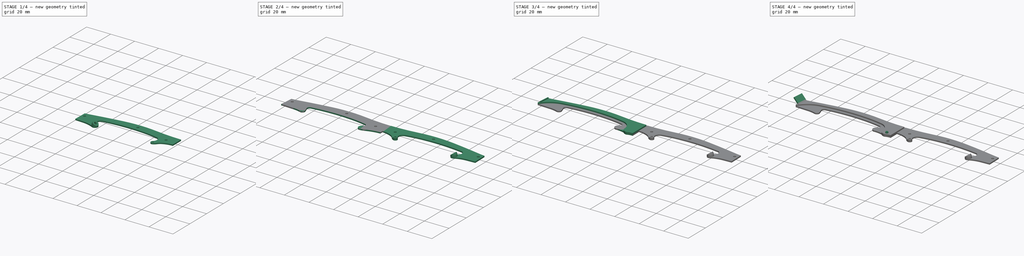
[diagram: build sequence overview — one tinted view per stage of 4, left to right]
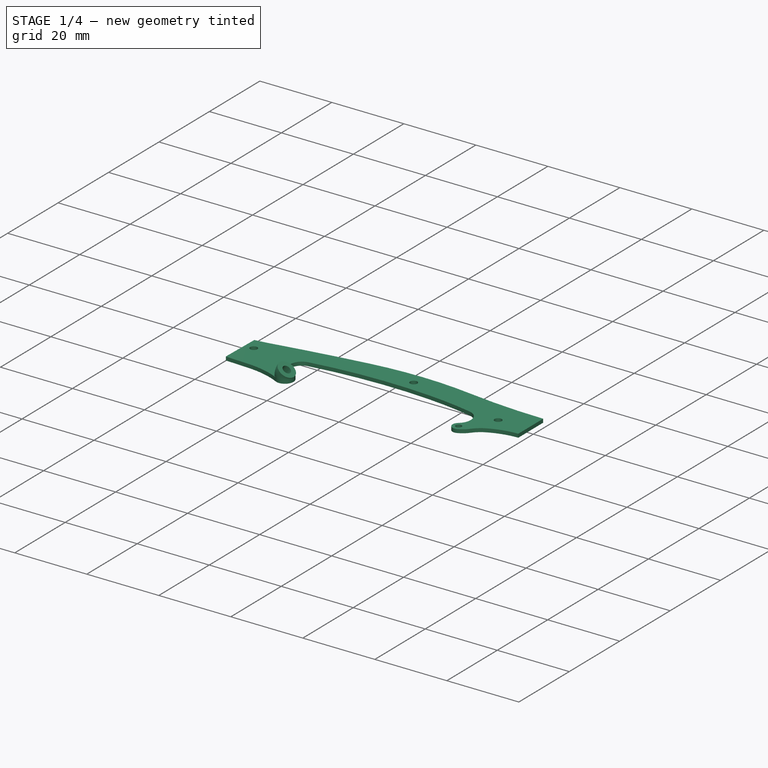
[diagram: stage 1 of 4 — iso view after this stage's code; geometry added in this stage tinted green]
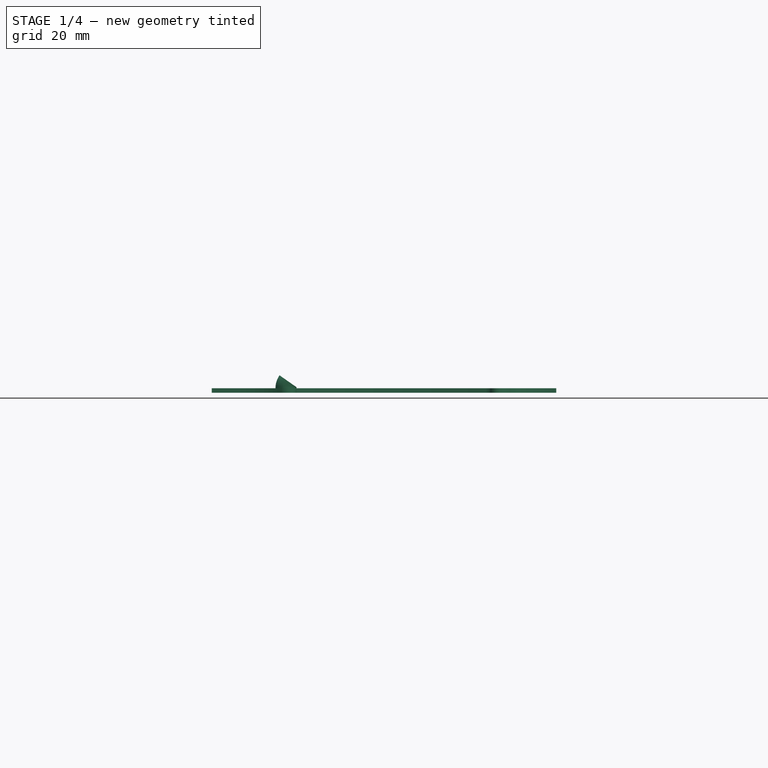
[diagram: stage 1 of 4 — front view after this stage's code; geometry added in this stage tinted green]
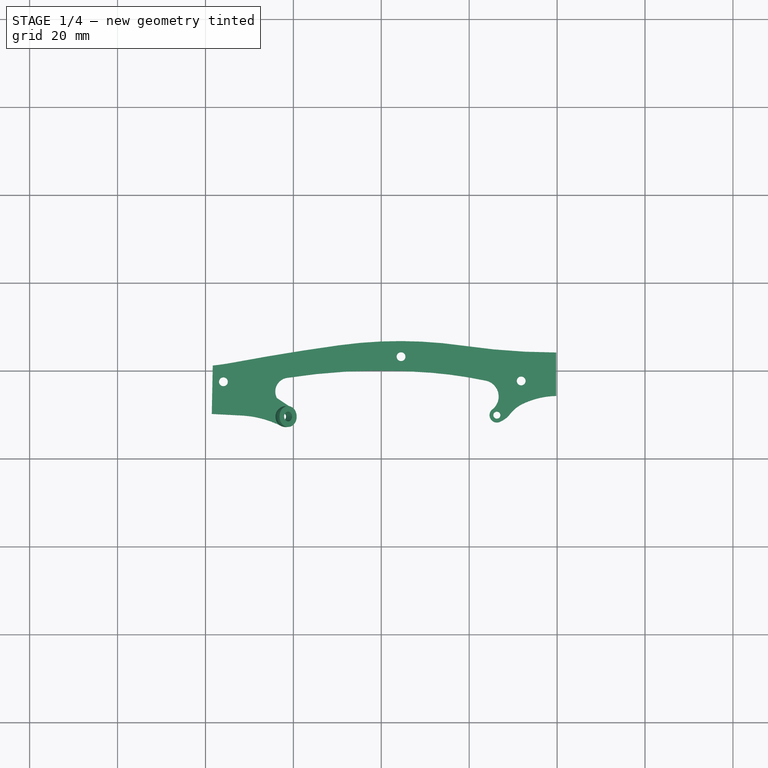
[diagram: stage 1 of 4 — top view after this stage's code; geometry added in this stage tinted green]
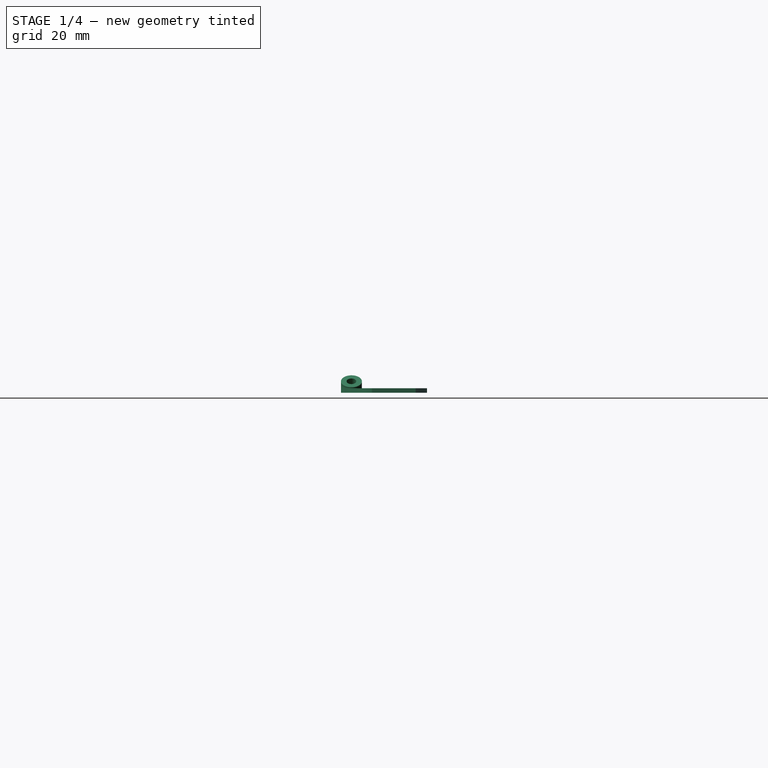
[diagram: stage 1 of 4 — right view after this stage's code; geometry added in this stage tinted green]
FCSTD DOCUMENT  (FreeCAD 0.14R3683 (Git))
Label: frame-attach
License: CC-BY 3.0
LicenseURL: http://creativecommons.org/licenses/by/3.0/
objects: Sketcher::SketchObject×12, PartDesign::Pad×8, PartDesign::Pocket×3, Image::ImagePlane×1, PartDesign::Revolution×1, Part::Mirroring×1
note: 37 computed .brp shape members not serialized (recipe doc carries the construction recipe); baked Part::Feature solids carry a one-line shape summary decoded from their .brp

FEATURE [Sketcher::SketchObject] Sketch010  label="top cover004"
  sketch-geometry (25):
    g0: GeomPoint [constr] X=-78.3435 Y=1.23505 Z=0
    g1: ArcOfCircle CenterX=-35.8152 CenterY=-93.0325 CenterZ=0 NormalX=0 NormalY=0 NormalZ=1 Radius=99.8313 StartAngle=1.42625 EndAngle=1.70819
    g2: ArcOfCircle CenterX=0.0743623 CenterY=153.533 CenterZ=0 NormalX=0 NormalY=0 NormalZ=1 Radius=149.333 StartAngle=4.56785 EndAngle=4.71055
    g3: LineSegment [constr] StartX=-0.2 StartY=12.6157 StartZ=0 EndX=-0.2 EndY=4.20069 EndZ=0
    g4: ArcOfCircle CenterX=-83.6805 CenterY=53.8748 CenterZ=0 NormalX=0 NormalY=0 NormalZ=1 Radius=52.9096 StartAngle=4.81343 EndAngle=4.8983
    g5: ArcOfCircle CenterX=20.3393 CenterY=-499.172 CenterZ=0 NormalX=0 NormalY=0 NormalZ=1 Radius=509.835 StartAngle=1.70819 EndAngle=1.75671
    g6: LineSegment StartX=-78.3435 StartY=1.23505 StartZ=0 EndX=-78.5637 EndY=-9.77156 EndZ=0
    g7: ArcOfCircle CenterX=-40.0846 CenterY=-138.659 CenterZ=0 NormalX=0 NormalY=0 NormalZ=1 Radius=138.746 StartAngle=1.48737 EndAngle=1.72534
    g8: ArcOfCircle CenterX=-36.8483 CenterY=-99.958 CenterZ=0 NormalX=0 NormalY=0 NormalZ=1 Radius=99.9108 StartAngle=1.36287 EndAngle=1.48737
    g9: GeomPoint [constr] X=4.23561 Y=-13.8169 Z=0
    g10: LineSegment StartX=-0.2 StartY=-5.67807 StartZ=0 EndX=-0.2 EndY=4.20069 EndZ=0
    g11: ArcOfCircle CenterX=-60.9564 CenterY=-4.68362 CenterZ=0 NormalX=0 NormalY=0 NormalZ=1 Radius=3.15536 StartAngle=1.72534 EndAngle=3.635
    g12: ArcOfCircle CenterX=-61.6988 CenterY=-10.3877 CenterZ=0 NormalX=0 NormalY=0 NormalZ=1 Radius=2.37961 StartAngle=4.2469 EndAngle=7.26764
    g13: LineSegment StartX=-63.7354 StartY=-6.17811 StartZ=0 EndX=-60.3822 EndY=-8.40554 EndZ=0
    g14: ArcOfCircle CenterX=-72.9831 CenterY=-32.8525 CenterZ=0 NormalX=0 NormalY=0 NormalZ=1 Radius=22.7601 StartAngle=1.10531 EndAngle=1.51885
    g15: ArcOfCircle CenterX=-16.9856 CenterY=-5.81297 CenterZ=0 NormalX=0 NormalY=0 NormalZ=1 Radius=3.69318 StartAngle=5.3714 EndAngle=7.64605
    g16: ArcOfCircle CenterX=-13.7 CenterY=-10.055 CenterZ=0 NormalX=0 NormalY=0 NormalZ=1 Radius=1.67246 StartAngle=2.22981 EndAngle=5.11136
    g17: Circle CenterX=-8.1709 CenterY=-2.26972 CenterZ=0 NormalX=0 NormalY=0 NormalZ=1 Radius=1
    g18: Circle CenterX=-75.9168 CenterY=-2.45381 CenterZ=0 NormalX=0 NormalY=0 NormalZ=1 Radius=1
    g19: Circle CenterX=-35.5086 CenterY=3.25304 CenterZ=0 NormalX=0 NormalY=0 NormalZ=1 Radius=1
    g20: ArcOfCircle CenterX=-15.3616 CenterY=-6.11368 CenterZ=0 NormalX=0 NormalY=0 NormalZ=1 Radius=5.94973 StartAngle=5.11136 EndAngle=5.62317
    g21: ArcOfCircle CenterX=-4.42447 CenterY=-14.6023 CenterZ=0 NormalX=0 NormalY=0 NormalZ=1 Radius=7.89504 StartAngle=2.01395 EndAngle=2.48158
    g22: ArcOfCircle CenterX=0.159561 CenterY=-24.2601 CenterZ=0 NormalX=0 NormalY=0 NormalZ=1 Radius=18.5855 StartAngle=1.59014 EndAngle=2.01395
    g23: Circle CenterX=-13.7 CenterY=-10.055 CenterZ=0 NormalX=0 NormalY=0 NormalZ=1 Radius=0.8
    g24: LineSegment StartX=-78.5637 StartY=-9.77156 StartZ=0 EndX=-71.8012 EndY=-10.1232 EndZ=0
  constraints (54):
    c: Coincident(g2,g1)
    c: Tangent(g2,g1)
    c: Vertical(g3)
    c: Coincident(g4,g0)
    c: Coincident(g5,g4)
    c: Coincident(g5,g1)
    c: Tangent(g4,g5)
    c: Tangent(g5,g1)
    c: Coincident(g6,g0)
    c: Coincident(g8,g7)
    c: Tangent(g8,g7)
    c: DistanceX(g7) = -28.5225
    c: Coincident(g3,g2)
    c: Coincident(g10,g2)
    c: Coincident(g11,g7)
    c: Tangent(g11,g7)
    c: Coincident(g13,g11)
    c: Coincident(g13,g12)
    c: Coincident(g14,g12)
    c: Coincident(g15,g8)
    c: Coincident(g16,g15)
    c: DistanceX(g3) = -0.2
    c: DistanceY(g3) = 12.6157
    c: Parallel(g10,g-2)
    c: Radius(g18) = 1
    c: Equal(g18,g19)
    c: Equal(g19,g17)
    c: Tangent(g13,g12)
    c: Tangent(g14,g12)
    c: Coincident(g20,g16)
    c: Tangent(g20,g16)
    c: Tangent(g15,g8)
    c: Coincident(g21,g20)
    c: Tangent(g21,g20)
    c: Coincident(g22,g21)
    c: Tangent(g22,g21)
    c: Tangent(g15,g16)
    c: Coincident(g22,g10)
    c: Distance(g12,g16) = 48
    c: Coincident(g23,g16)
    c: Radius(g23) = 0.8
    c: DistanceX(g19) = -35.5086
    c: DistanceY(g19) = 3.25304
    c: DistanceX(g18) = -75.9168
    c: DistanceY(g18) = -2.45381
    c: DistanceX(g17) = -8.1709
    c: DistanceY(g17) = -2.26972
    c: DistanceY(g16) = -10.055
    c: Distance(g18,g6) = 2.5
    c: Distance(g16,g10) = 13.5
    c: Coincident(g24,g6)
    c: Coincident(g24,g14)
    c: Tangent(g24,g14)
    c: Distance(g6) = 11.0088
FEATURE [PartDesign::Pad] Pad006
  Length = 1
  Length2 = 100
  Sketch = -> Sketch010
  Type = 0
FEATURE [Sketcher::SketchObject] Sketch011
  ExternalGeometry = -> [Pad006]
  Placement = pos=(0,0,1) rot=(0,0,1;0rad)
  Support = -> Pad006 [Face24]
  sketch-geometry (2):
    g0: Circle CenterX=-61.6988 CenterY=-10.3877 CenterZ=0 NormalX=0 NormalY=0 NormalZ=1 Radius=2.37961
    g1: LineSegment [constr] StartX=-58.924 StartY=-5.54495 StartZ=0 EndX=-58.924 EndY=-15.386 EndZ=0
  constraints (3):
    c: Coincident(g0,g-3)
    c: Equal(g0,g-3)
    c: Vertical(g1)
FEATURE [PartDesign::Revolution] Revolution
  Angle = 35
  Axis = (0,-9.84103,0)
  Base = (-58.924,-5.54495,1)
  ReferenceAxis = -> Sketch011 [Axis0]
  Reversed = true
  Sketch = -> Sketch011
FEATURE [Sketcher::SketchObject] Sketch012
  ExternalGeometry = -> [Revolution]
  Placement = pos=(-18.9156,0,-27.0142) rot=(0,1,0;0.610865rad)
  Support = -> Revolution [Face26]
  sketch-geometry (1):
    g0: Circle CenterX=-51.6161 CenterY=-10.3877 CenterZ=0 NormalX=0 NormalY=0 NormalZ=1 Radius=1.10274
  constraints (1):
    c: Coincident(g0,g-3)
FEATURE [PartDesign::Pocket] Pocket002
  Length = 5
  Sketch = -> Sketch012
  Type = 1
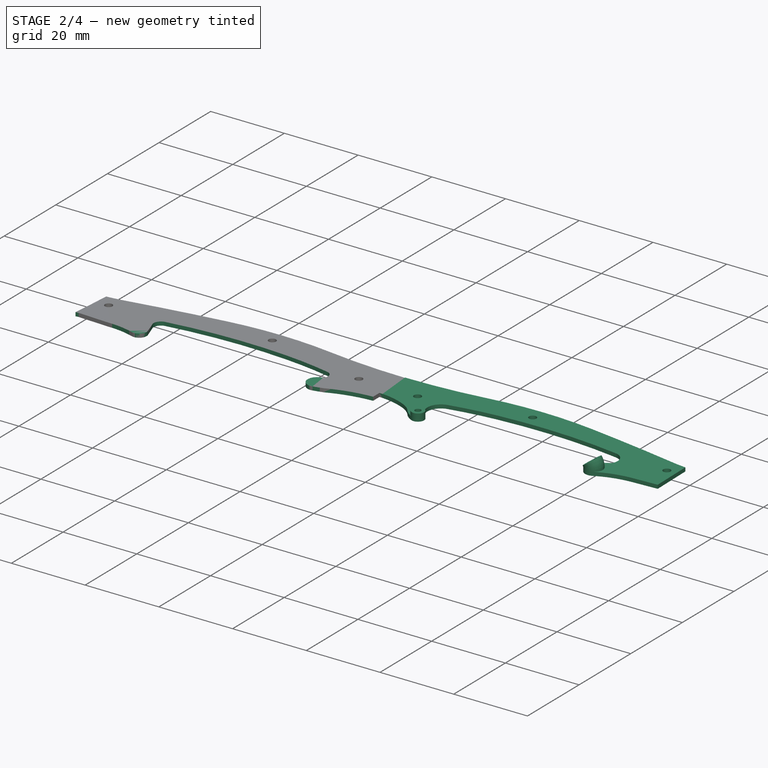
[diagram: stage 2 of 4 — iso view after this stage's code; geometry added in this stage tinted green]
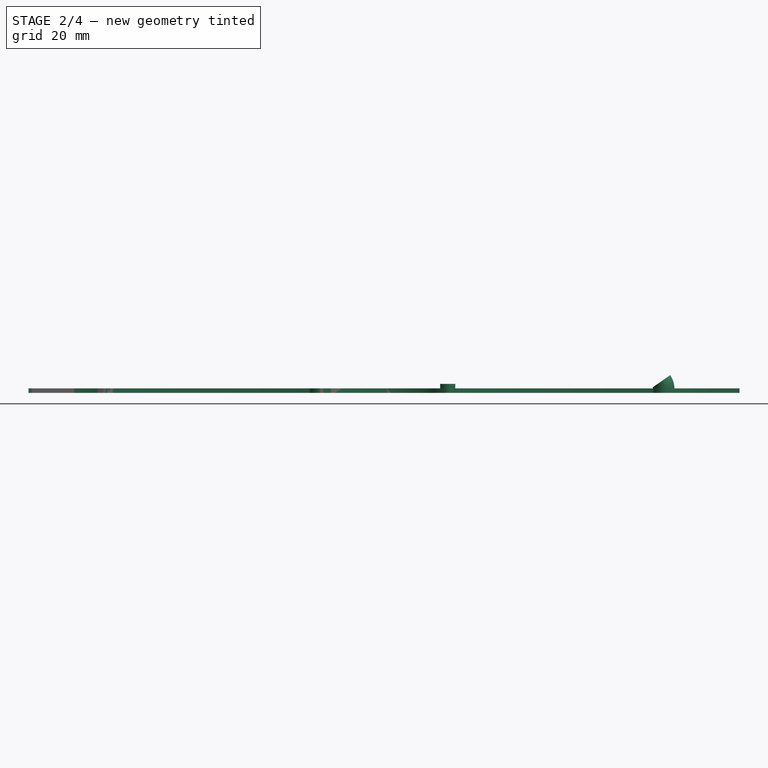
[diagram: stage 2 of 4 — front view after this stage's code; geometry added in this stage tinted green]
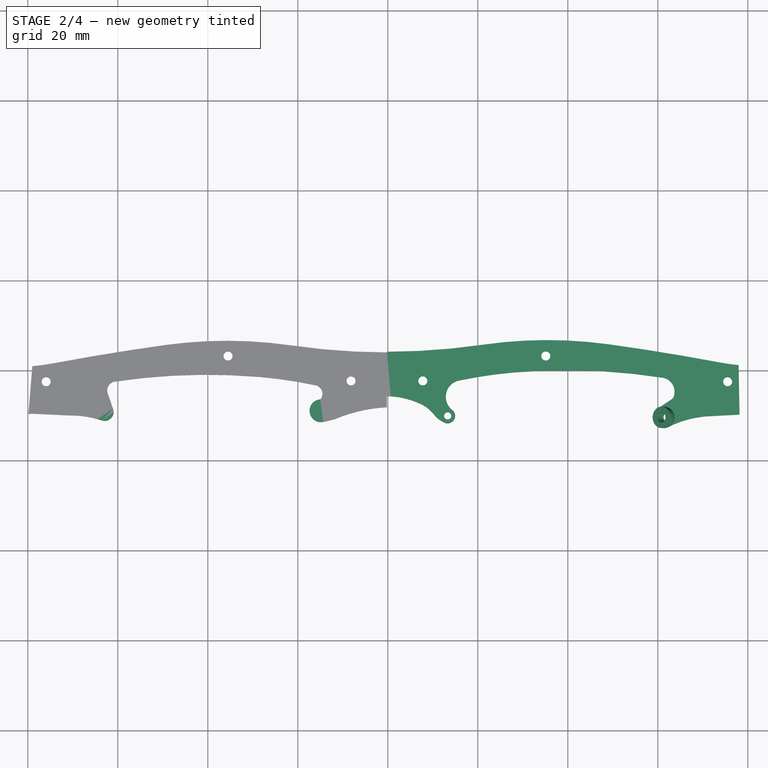
[diagram: stage 2 of 4 — top view after this stage's code; geometry added in this stage tinted green]
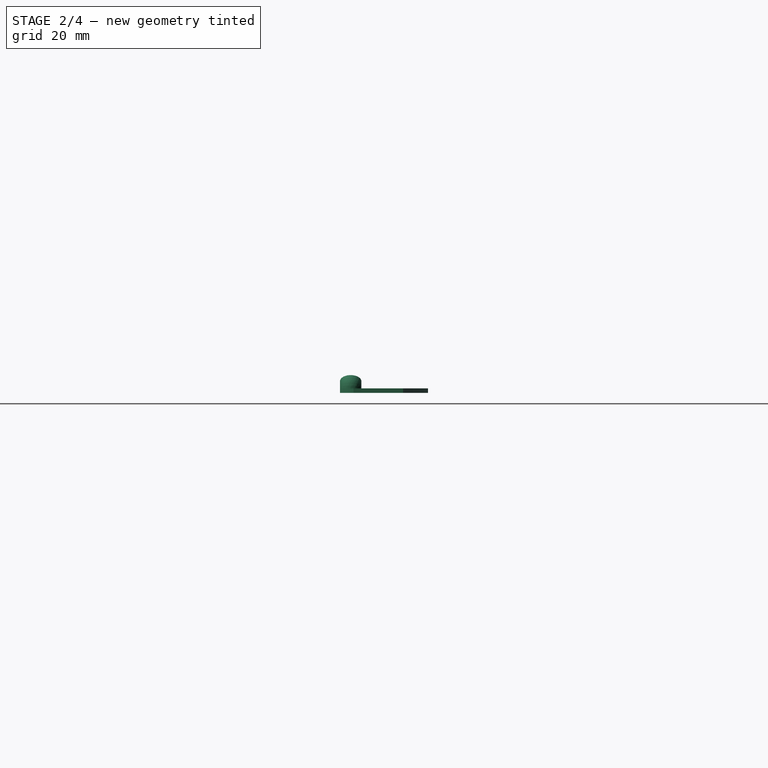
[diagram: stage 2 of 4 — right view after this stage's code; geometry added in this stage tinted green]
FEATURE [Sketcher::SketchObject] Sketch009  label="top cover003"
  sketch-geometry (24):
    g0: GeomPoint [constr] X=-79 Y=1.00507 Z=0
    g1: ArcOfCircle CenterX=-35.7626 CenterY=-93.1111 CenterZ=0 NormalX=0 NormalY=0 NormalZ=1 Radius=99.7546 StartAngle=1.42663 EndAngle=1.70818
    g2: ArcOfCircle CenterX=0.0337208 CenterY=153.464 CenterZ=0 NormalX=0 NormalY=0 NormalZ=1 Radius=149.406 StartAngle=4.56822 EndAngle=4.71082
    g3: LineSegment [constr] StartX=-0.2 StartY=12.6157 StartZ=0 EndX=-0.2 EndY=4.05894 EndZ=0
    g4: ArcOfCircle CenterX=-83.7041 CenterY=53.7846 CenterZ=0 NormalX=0 NormalY=0 NormalZ=1 Radius=52.9888 StartAngle=4.80128 EndAngle=4.89843
    g5: ArcOfCircle CenterX=20.3879 CenterY=-499.246 CenterZ=0 NormalX=0 NormalY=0 NormalZ=1 Radius=509.753 StartAngle=1.70818 EndAngle=1.75684
    g6: LineSegment StartX=-79 StartY=1.00507 StartZ=0 EndX=-79.863 EndY=-9.64545 EndZ=0
    g7: LineSegment StartX=-79.863 StartY=-9.64545 StartZ=0 EndX=-79.097 EndY=-9.55453 EndZ=0
    g8: ArcOfCircle CenterX=-40.1731 CenterY=-139.413 CenterZ=0 NormalX=0 NormalY=0 NormalZ=1 Radius=138.507 StartAngle=1.48658 EndAngle=1.71915
    g9: ArcOfCircle CenterX=-36.8805 CenterY=-100.408 CenterZ=0 NormalX=0 NormalY=0 NormalZ=1 Radius=99.3637 StartAngle=1.36038 EndAngle=1.48658
    g10: GeomPoint [constr] X=4.23561 Y=-13.8169 Z=0
    g11: LineSegment StartX=-0.2 StartY=-8.13554 StartZ=0 EndX=-0.2 EndY=4.05894 EndZ=0
    g12: ArcOfCircle CenterX=-60.3489 CenterY=-4.40997 CenterZ=0 NormalX=0 NormalY=0 NormalZ=1 Radius=2.00506 StartAngle=1.71915 EndAngle=3.61509
    g13: ArcOfCircle CenterX=-62.9316 CenterY=-9.17287 CenterZ=0 NormalX=0 NormalY=0 NormalZ=1 Radius=2.00011 StartAngle=4.42451 EndAngle=6.66404
    g14: LineSegment StartX=-62.1333 StartY=-5.32429 StartZ=0 EndX=-61.0748 EndY=-8.4294 EndZ=0
    g15: ArcOfCircle CenterX=-70.4865 CenterY=-31.9632 CenterZ=0 NormalX=0 NormalY=0 NormalZ=1 Radius=22.0109 StartAngle=1.24777 EndAngle=1.58372
    g16: LineSegment StartX=-79.097 StartY=-9.55453 StartZ=0 EndX=-70.7709 EndY=-9.9541 EndZ=0
    g17: ArcOfCircle CenterX=-16.448 CenterY=-5.11784 CenterZ=0 NormalX=0 NormalY=0 NormalZ=1 Radius=1.90917 StartAngle=5.56044 EndAngle=7.68511
    g18: ArcOfCircle CenterX=-14.8586 CenterY=-8.9173 CenterZ=0 NormalX=0 NormalY=0 NormalZ=1 Radius=2.54154 StartAngle=1.63279 EndAngle=4.91881
    g19: ArcOfCircle CenterX=-23.5927 CenterY=32.7918 CenterZ=0 NormalX=0 NormalY=0 NormalZ=1 Radius=45.1553 StartAngle=4.91881 EndAngle=4.97634
    g20: ArcOfCircle CenterX=1.54339 CenterY=-42.3727 CenterZ=0 NormalX=0 NormalY=0 NormalZ=1 Radius=34.2815 StartAngle=1.62167 EndAngle=1.97097
    g21: Circle CenterX=-8.1709 CenterY=-2.26972 CenterZ=0 NormalX=0 NormalY=0 NormalZ=1 Radius=1
    g22: Circle CenterX=-75.9168 CenterY=-2.45381 CenterZ=0 NormalX=0 NormalY=0 NormalZ=1 Radius=1
    g23: Circle CenterX=-35.5086 CenterY=3.25304 CenterZ=0 NormalX=0 NormalY=0 NormalZ=1 Radius=1
  constraints (40):
    c: DistanceX(g-2,g0) = -79
    c: Coincident(g2,g1)
    c: Tangent(g2,g1)
    c: Vertical(g3)
    c: Coincident(g4,g0)
    c: Coincident(g5,g4)
    c: Coincident(g5,g1)
    c: Tangent(g4,g5)
    c: Tangent(g5,g1)
    c: Coincident(g6,g0)
    c: Coincident(g7,g6)
    c: DistanceY(g7) = -9.55453
    c: Coincident(g9,g8)
    c: Tangent(g9,g8)
    c: DistanceX(g8) = -28.5225
    c: Coincident(g3,g2)
    c: Coincident(g11,g2)
    c: DistanceX(g7) = -79.097
    c: Coincident(g12,g8)
    c: Tangent(g12,g8)
    c: Coincident(g14,g12)
    c: Coincident(g14,g13)
    c: Coincident(g15,g13)
    c: Coincident(g16,g7)
    c: Coincident(g16,g15)
    c: Coincident(g17,g9)
    c: Coincident(g18,g17)
    c: DistanceX(g3) = -0.2
    c: DistanceY(g3) = 12.6157
    c: Parallel(g11,g-2)
    c: DistanceX(g18) = -14.3377
    c: Coincident(g19,g18)
    c: DistanceX(g18) = -14.8586
    c: DistanceY(g18) = -8.9173
    c: Tangent(g19,g18)
    c: Coincident(g20,g19)
    c: Coincident(g20,g11)
    c: Radius(g22) = 1
    c: Equal(g22,g23)
    c: Equal(g23,g21)
FEATURE [PartDesign::Pad] Pad005
  Length = 1
  Length2 = 100
  Sketch = -> Sketch009
  Type = 0
FEATURE [Sketcher::SketchObject] Sketch013
  Placement = pos=(0,0,1) rot=(0,0,1;0rad)
  Support = -> Pocket002 [Face5]
  sketch-geometry (2):
    g0: Circle CenterX=-13.7 CenterY=-10.055 CenterZ=0 NormalX=0 NormalY=0 NormalZ=1 Radius=1.67246
    g1: Circle CenterX=-13.7 CenterY=-10.055 CenterZ=0 NormalX=0 NormalY=0 NormalZ=1 Radius=0.8
  constraints (1):
    c: Coincident(g1,g0)
FEATURE [PartDesign::Pad] Pad007
  Length = 1
  Length2 = 100
  Sketch = -> Sketch013
  Type = 0
FEATURE [Part::Mirroring] Part__Mirroring  label="Pad007 (Mirror #1)"
  Base = (-0.2,0,0)
  Normal = (1,0,0)
  Source = -> Pad007
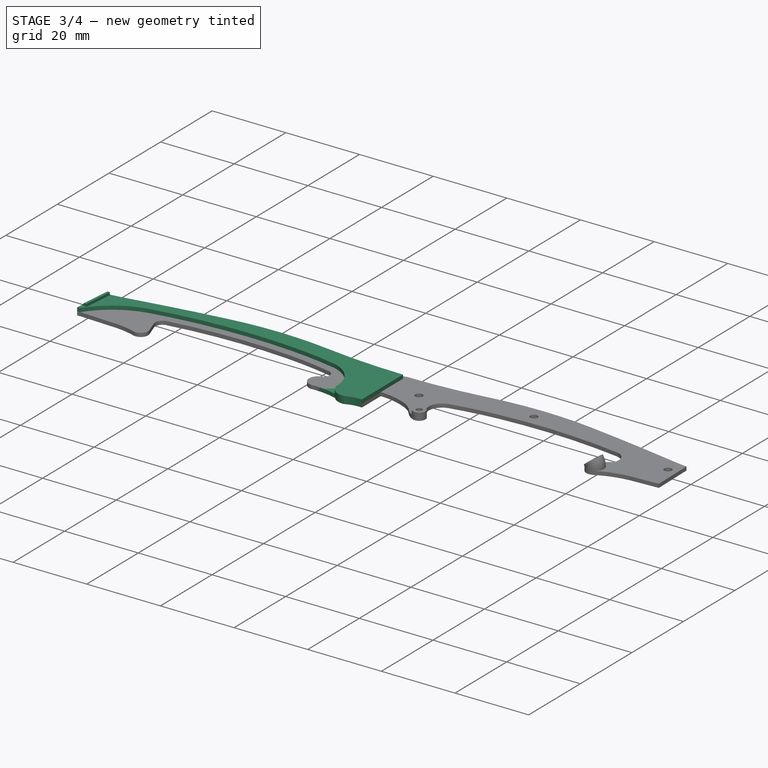
[diagram: stage 3 of 4 — iso view after this stage's code; geometry added in this stage tinted green]
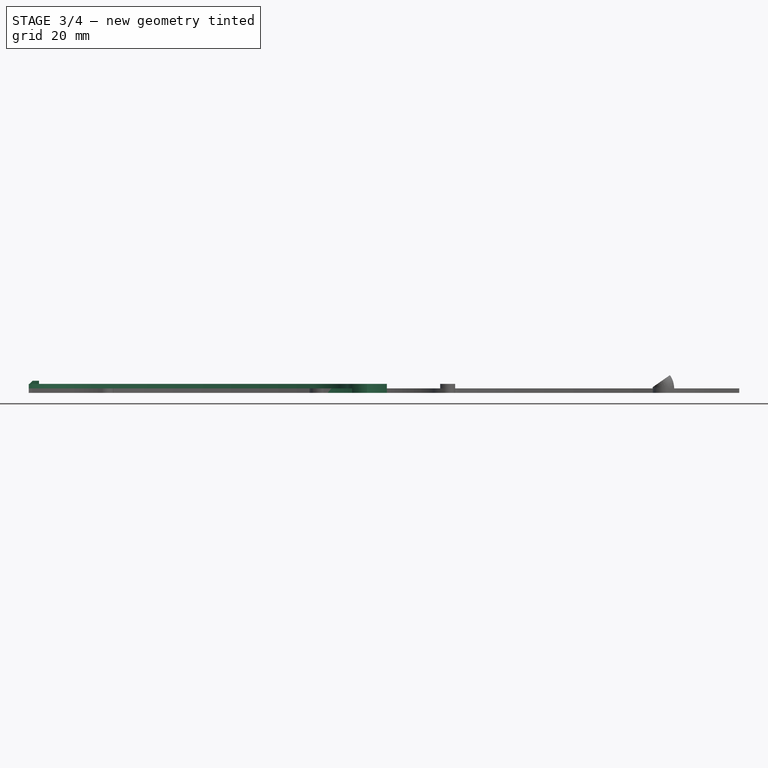
[diagram: stage 3 of 4 — front view after this stage's code; geometry added in this stage tinted green]
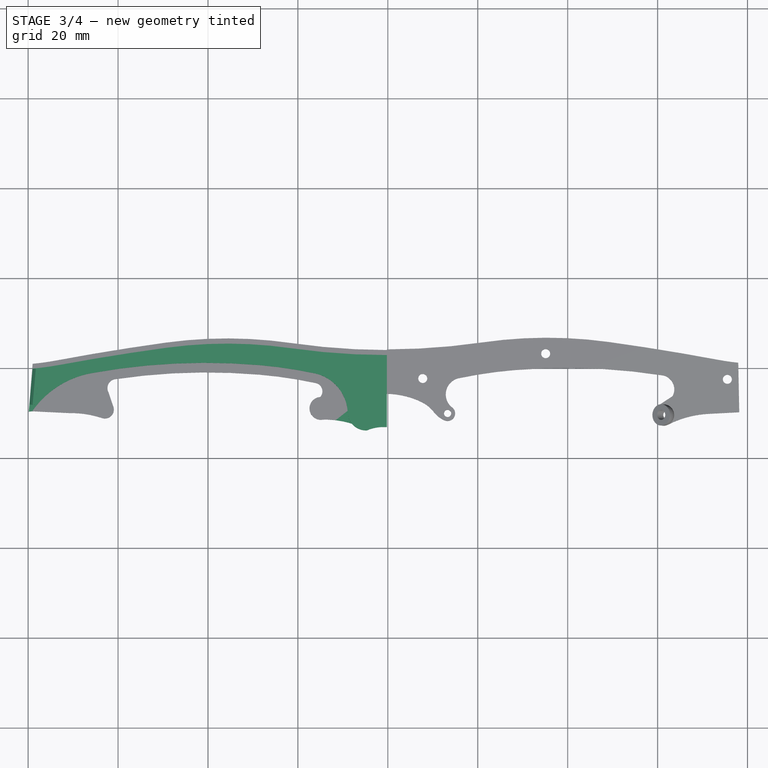
[diagram: stage 3 of 4 — top view after this stage's code; geometry added in this stage tinted green]
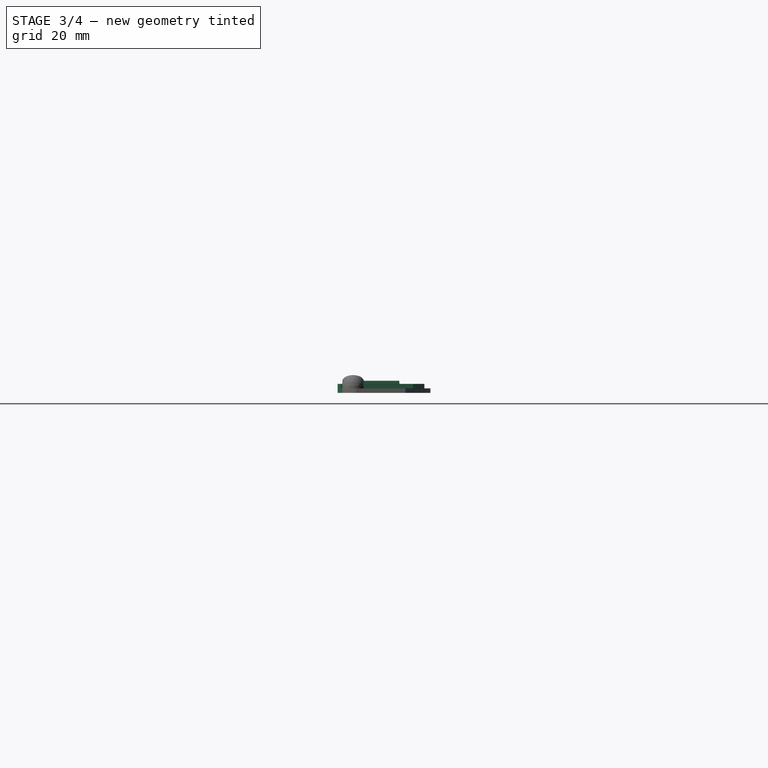
[diagram: stage 3 of 4 — right view after this stage's code; geometry added in this stage tinted green]
FEATURE [Image::ImagePlane] ImagePlane
  Placement = pos=(2.42941,4.33823,-10.029) rot=(-0.414463,0.885802,0.208749;0.103549rad)
  XSize = 191
  YSize = 143
FEATURE [Sketcher::SketchObject] Sketch002  label="top cover002"
  sketch-geometry (23):
    g0: GeomPoint [constr] X=-79 Y=0.55582 Z=0
    g1: ArcOfCircle CenterX=-35.7081 CenterY=-93.3995 CenterZ=0 NormalX=0 NormalY=0 NormalZ=1 Radius=99.4992 StartAngle=1.42732 EndAngle=1.70572
    g2: ArcOfCircle CenterX=-0.0800418 CenterY=153.211 CenterZ=0 NormalX=0 NormalY=0 NormalZ=1 Radius=149.672 StartAngle=4.56891 EndAngle=4.71159
    g3: LineSegment [constr] StartX=-0.2 StartY=12.6157 StartZ=0 EndX=-0.2 EndY=3.53938 EndZ=0
    g4: ArcOfCircle CenterX=-83.6183 CenterY=57.0912 CenterZ=0 NormalX=0 NormalY=0 NormalZ=1 Radius=56.7237 StartAngle=4.7939 EndAngle=4.89543
    g5: ArcOfCircle CenterX=19.4331 CenterY=-499.607 CenterZ=0 NormalX=0 NormalY=0 NormalZ=1 Radius=509.432 StartAngle=1.70572 EndAngle=1.75384
    g6: LineSegment StartX=-79 StartY=0.55582 StartZ=0 EndX=-79.863 EndY=-9.64545 EndZ=0
    g7: LineSegment StartX=-79.863 StartY=-9.64545 StartZ=0 EndX=-79.097 EndY=-9.55453 EndZ=0
    g8: ArcOfCircle CenterX=-40.292 CenterY=-139.607 CenterZ=0 NormalX=0 NormalY=0 NormalZ=1 Radius=138.694 StartAngle=1.48583 EndAngle=1.71808
    g9: ArcOfCircle CenterX=-36.9334 CenterY=-100.173 CenterZ=0 NormalX=0 NormalY=0 NormalZ=1 Radius=99.1162 StartAngle=1.35936 EndAngle=1.48583
    g10: ArcOfCircle CenterX=-4.80308 CenterY=-9.74415 CenterZ=0 NormalX=0 NormalY=0 NormalZ=1 Radius=4.07618 StartAngle=3.83045 EndAngle=4.75349
    g11: GeomPoint [constr] X=4.23561 Y=-13.8169 Z=0
    g12: ArcOfCircle CenterX=-0.69972 CenterY=-22.6893 CenterZ=0 NormalX=0 NormalY=0 NormalZ=1 Radius=9.70619 StartAngle=1.51929 EndAngle=1.98833
    g13: LineSegment [constr] StartX=-0.2 StartY=-12.9959 StartZ=0 EndX=-0.2 EndY=-14.9983 EndZ=0
    g14: LineSegment StartX=-0.2 StartY=-12.9959 StartZ=0 EndX=-0.2 EndY=3.53938 EndZ=0
    g15: ArcOfCircle CenterX=-60.3502 CenterY=-4.4023 CenterZ=0 NormalX=0 NormalY=0 NormalZ=1 Radius=2.00886 StartAngle=1.71808 EndAngle=3.61805
    g16: ArcOfCircle CenterX=-62.9316 CenterY=-9.17287 CenterZ=0 NormalX=0 NormalY=0 NormalZ=1 Radius=2.00011 StartAngle=4.42451 EndAngle=6.66404
    g17: LineSegment StartX=-62.1353 StartY=-5.32363 StartZ=0 EndX=-61.0748 EndY=-8.4294 EndZ=0
    g18: ArcOfCircle CenterX=-70.4865 CenterY=-31.9632 CenterZ=0 NormalX=0 NormalY=0 NormalZ=1 Radius=22.0109 StartAngle=1.24777 EndAngle=1.58372
    g19: LineSegment StartX=-79.097 StartY=-9.55453 StartZ=0 EndX=-70.7709 EndY=-9.9541 EndZ=0
    g20: ArcOfCircle CenterX=-16.4478 CenterY=-5.13353 CenterZ=0 NormalX=0 NormalY=0 NormalZ=1 Radius=1.89624 StartAngle=5.56498 EndAngle=7.68705
    g21: ArcOfCircle CenterX=-14.8775 CenterY=-8.92008 CenterZ=0 NormalX=0 NormalY=0 NormalZ=1 Radius=2.54275 StartAngle=1.62685 EndAngle=4.92629
    g22: ArcOfCircle CenterX=-14.0354 CenterY=-31.7251 CenterZ=0 NormalX=0 NormalY=0 NormalZ=1 Radius=20.3225 StartAngle=1.26668 EndAngle=1.58567
  constraints (38):
    c: DistanceX(g-2,g0) = -79
    c: Coincident(g2,g1)
    c: Tangent(g2,g1)
    c: Vertical(g3)
    c: Coincident(g4,g0)
    c: Coincident(g5,g4)
    c: Coincident(g5,g1)
    c: Tangent(g4,g5)
    c: Tangent(g5,g1)
    c: Coincident(g6,g0)
    c: Coincident(g7,g6)
    c: DistanceY(g7) = -9.55453
    c: Coincident(g9,g8)
    c: Tangent(g9,g8)
    c: DistanceX(g8) = -28.5225
    c: DistanceX(g10) = -4.63561
    c: DistanceY(g10) = -13.8169
    c: Symmetric(g10,g11,g3)
    c: Coincident(g12,g10)
    c: Coincident(g3,g2)
    c: Tangent(g3,g13)
    c: Coincident(g12,g13)
    c: Coincident(g14,g12)
    c: Coincident(g14,g2)
    c: DistanceX(g7) = -79.097
    c: Coincident(g15,g8)
    c: Tangent(g15,g8)
    c: Coincident(g17,g15)
    c: Coincident(g17,g16)
    c: Coincident(g18,g16)
    c: Coincident(g19,g7)
    c: Coincident(g19,g18)
    c: Coincident(g20,g9)
    c: Coincident(g21,g20)
    c: Coincident(g22,g21)
    c: Coincident(g22,g10)
    c: DistanceX(g3) = -0.2
    c: DistanceY(g3) = 12.6157
FEATURE [PartDesign::Pad] Pad001
  Length = 1
  Length2 = 100
  Sketch = -> Sketch002
  Type = 0
FEATURE [PartDesign::Pad] Pad002
  Length = 1
  Length2 = 100
  Sketch = -> Sketch001
  Type = 0
FEATURE [Sketcher::SketchObject] Sketch006
  Placement = pos=(0,0,2) rot=(0,0,1;0rad)
  Support = -> Pad002 [Face28]
  sketch-geometry (4):
    g0: LineSegment StartX=-79 StartY=-0.0750313 StartZ=0 EndX=-77.586 EndY=-0.202544 EndZ=0
    g1: LineSegment StartX=-77.586 StartY=-0.202544 StartZ=0 EndX=-78.3074 EndY=-8.20254 EndZ=0
    g2: LineSegment StartX=-78.3074 StartY=-8.20254 StartZ=0 EndX=-79.7214 EndY=-8.07503 EndZ=0
    g3: LineSegment StartX=-79.7214 StartY=-8.07503 StartZ=0 EndX=-79 EndY=-0.0750313 EndZ=0
FEATURE [PartDesign::Pad] Pad003
  Length = 0.707
  Length2 = 100
  Sketch = -> Sketch006
  Type = 0
FEATURE [Sketcher::SketchObject] Sketch
  ExternalGeometry = -> [Pad003]
  Placement = pos=(-1.3654,-15.1411,0) rot=(0.997981,-0.044907,-0.044907;1.57282rad)
  Support = -> Pad003 [Face41]
  sketch-geometry (4):
    g0: LineSegment StartX=-78.674 StartY=2 StartZ=0 EndX=-78.674 EndY=2.707 EndZ=0
    g1: LineSegment StartX=-78.674 StartY=2.707 StartZ=0 EndX=-77.9641 EndY=2.707 EndZ=0
    g2: LineSegment StartX=-77.9641 StartY=2.707 StartZ=0 EndX=-78.674 EndY=2 EndZ=0
    g3: LineSegment [constr] StartX=-77.9641 StartY=2.707 StartZ=0 EndX=-77.2542 EndY=2 EndZ=0
  constraints (9):
    c: Coincident(g-3,g0)
    c: Coincident(g0,g-4)
    c: Coincident(g0,g1)
    c: PointOnObject(g1,g-4)
    c: Coincident(g1,g2)
    c: Coincident(g2,g0)
    c: Coincident(g3,g1)
    c: Coincident(g3,g-5)
    c: Equal(g3,g2)
FEATURE [PartDesign::Pocket] Pocket
  Length = 5
  Sketch = -> Sketch
  Type = 1
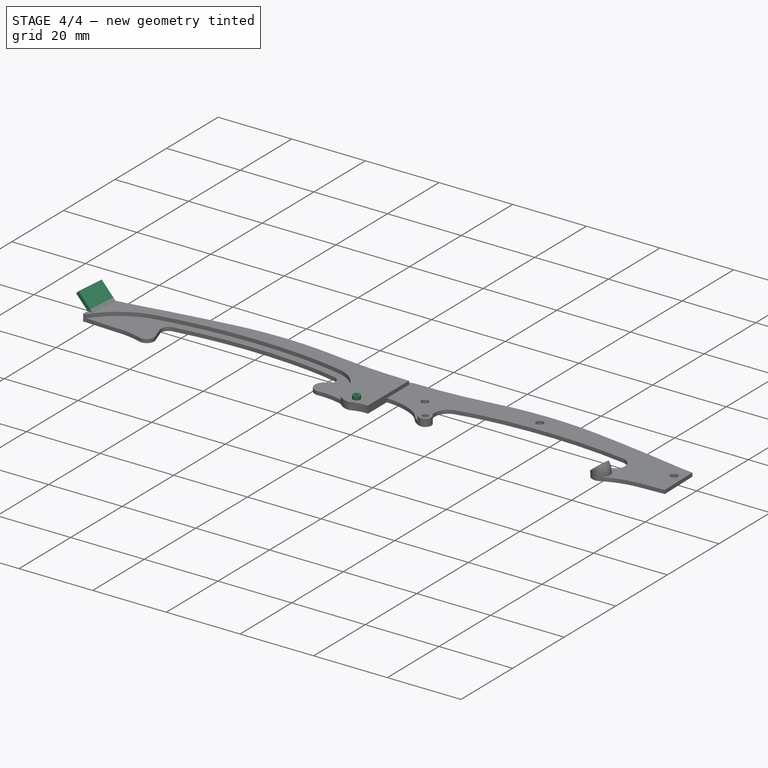
[diagram: stage 4 of 4 — iso view after this stage's code; geometry added in this stage tinted green]
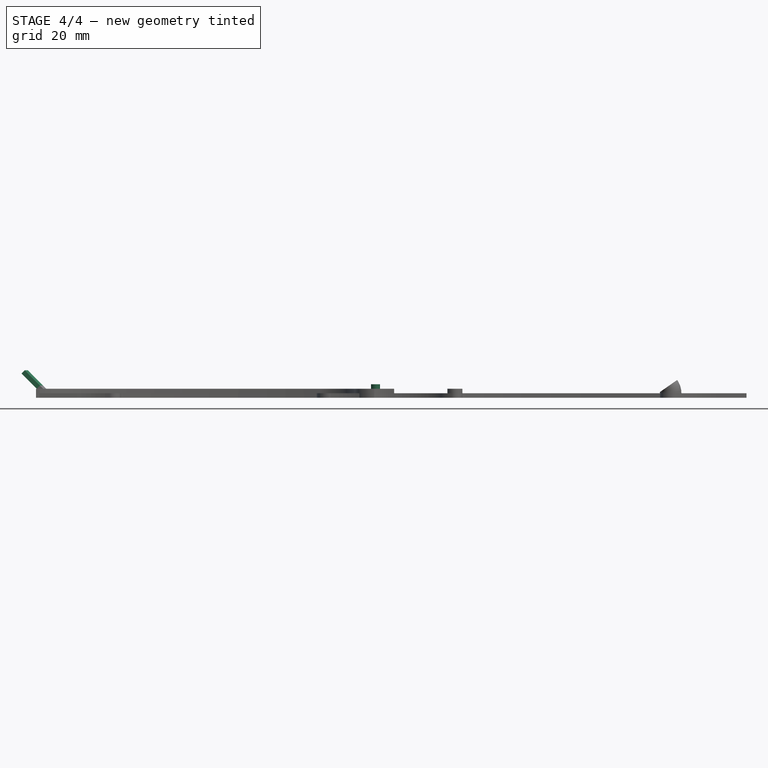
[diagram: stage 4 of 4 — front view after this stage's code; geometry added in this stage tinted green]
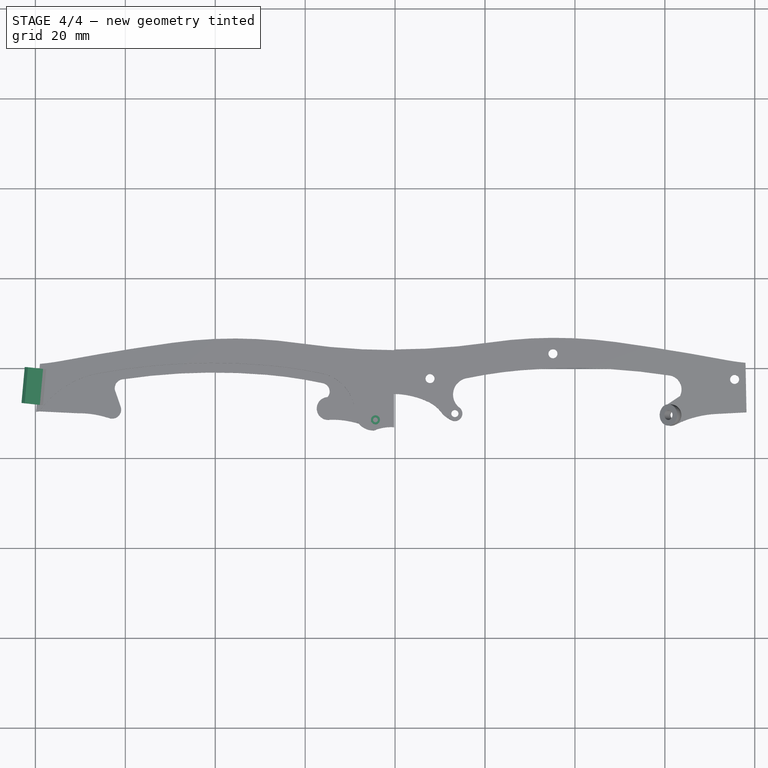
[diagram: stage 4 of 4 — top view after this stage's code; geometry added in this stage tinted green]
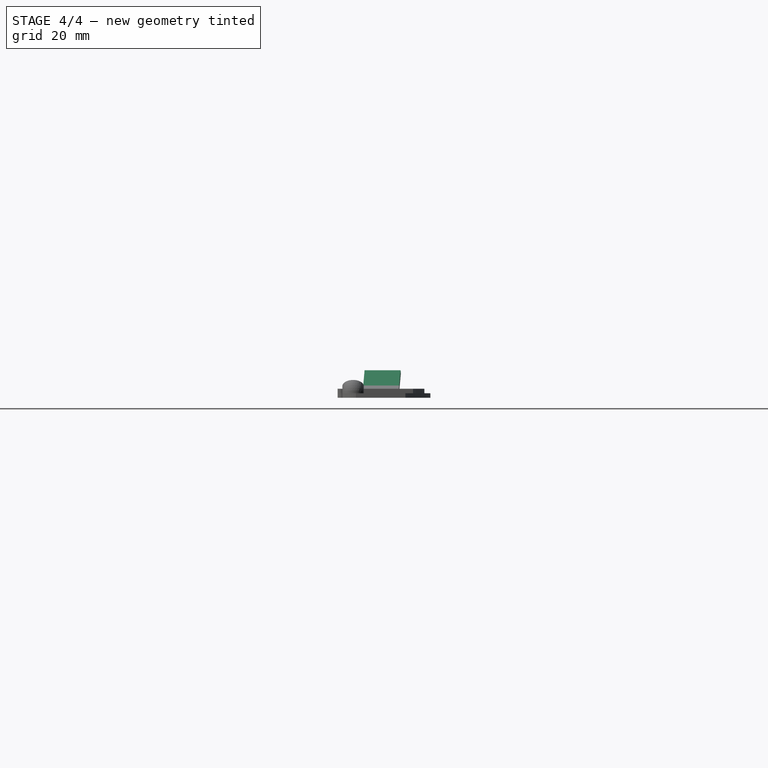
[diagram: stage 4 of 4 — right view after this stage's code; geometry added in this stage tinted green]
FEATURE [Sketcher::SketchObject] Sketch001  label="top cover001"
  Placement = pos=(0,0,1) rot=(0,0,1;0rad)
  Support = -> Pad001 [Face21]
  sketch-geometry (17):
    g0: GeomPoint [constr] X=-79 Y=-0.0750313 Z=0
    g1: ArcOfCircle CenterX=-35.7532 CenterY=-93.6892 CenterZ=0 NormalX=0 NormalY=0 NormalZ=1 Radius=99.1621 StartAngle=1.42768 EndAngle=1.70623
    g2: ArcOfCircle CenterX=-0.218416 CenterY=152.915 CenterZ=0 NormalX=0 NormalY=0 NormalZ=1 Radius=149.989 StartAngle=4.56928 EndAngle=4.71251
    g3: LineSegment [constr] StartX=-0.2 StartY=12.6157 StartZ=0 EndX=-0.2 EndY=2.92582 EndZ=0
    g4: ArcOfCircle CenterX=-83.6267 CenterY=56.7758 CenterZ=0 NormalX=0 NormalY=0 NormalZ=1 Radius=57.0388 StartAngle=4.79359 EndAngle=4.89574
    g5: ArcOfCircle CenterX=19.5985 CenterY=-499.898 CenterZ=0 NormalX=0 NormalY=0 NormalZ=1 Radius=509.125 StartAngle=1.70623 EndAngle=1.75415
    g6: LineSegment StartX=-79 StartY=-0.0750313 StartZ=0 EndX=-79.863 EndY=-9.64545 EndZ=0
    g7: LineSegment StartX=-79.863 StartY=-9.64545 StartZ=0 EndX=-79.097 EndY=-9.55453 EndZ=0
    g8: ArcOfCircle CenterX=-62.2242 CenterY=-21.3586 CenterZ=0 NormalX=0 NormalY=0 NormalZ=1 Radius=20.592 StartAngle=1.7522 EndAngle=2.53114
    g9: ArcOfCircle CenterX=-40.5753 CenterY=-139.393 CenterZ=0 NormalX=0 NormalY=0 NormalZ=1 Radius=140.595 StartAngle=1.48496 EndAngle=1.75219
    g10: ArcOfCircle CenterX=-37.1115 CenterY=-99.137 CenterZ=0 NormalX=0 NormalY=0 NormalZ=1 Radius=100.19 StartAngle=1.36133 EndAngle=1.48496
    g11: ArcOfCircle CenterX=-18.2105 CenterY=-10.2281 CenterZ=0 NormalX=0 NormalY=0 NormalZ=1 Radius=9.29474 StartAngle=0.0328171 EndAngle=1.36133
    g12: ArcOfCircle CenterX=-4.8889 CenterY=-9.79078 CenterZ=0 NormalX=0 NormalY=0 NormalZ=1 Radius=4.03407 StartAngle=3.17441 EndAngle=4.77522
    g13: GeomPoint [constr] X=4.23561 Y=-13.8169 Z=0
    g14: ArcOfCircle CenterX=-0.923661 CenterY=-22.7548 CenterZ=0 NormalX=0 NormalY=0 NormalZ=1 Radius=9.67808 StartAngle=1.49595 EndAngle=1.96443
    g15: LineSegment [constr] StartX=-0.2 StartY=-13.1038 StartZ=0 EndX=-0.2 EndY=-14.9983 EndZ=0
    g16: LineSegment StartX=-0.2 StartY=-13.1038 StartZ=0 EndX=-0.2 EndY=2.92582 EndZ=0
  constraints (35):
    c: DistanceX(g-2,g0) = -79
    c: Coincident(g2,g1)
    c: Tangent(g2,g1)
    c: Vertical(g3)
    c: Coincident(g4,g0)
    c: Coincident(g5,g4)
    c: Coincident(g5,g1)
    c: Tangent(g4,g5)
    c: Tangent(g5,g1)
    c: Coincident(g6,g0)
    c: Coincident(g7,g6)
    c: Coincident(g8,g7)
    c: DistanceY(g7) = -9.55453
    c: Coincident(g9,g8)
    c: Tangent(g8,g9)
    c: Coincident(g10,g9)
    c: Tangent(g10,g9)
    c: Coincident(g11,g10)
    c: Tangent(g11,g10)
    c: Coincident(g12,g11)
    c: Tangent(g12,g11)
    c: DistanceX(g9) = -28.5225
    c: DistanceY(g9) = 0.684653
    c: DistanceX(g12) = -4.63561
    c: DistanceY(g12) = -13.8169
    c: Symmetric(g12,g13,g3)
    c: Coincident(g14,g12)
    c: Coincident(g3,g2)
    c: Tangent(g3,g15)
    c: Coincident(g14,g15)
    c: Coincident(g16,g14)
    c: Coincident(g16,g2)
    c: DistanceX(g7) = -79.097
    c: DistanceX(g3) = -0.2
    c: DistanceY(g3) = 12.6157
FEATURE [Sketcher::SketchObject] Sketch005
  Placement = pos=(0,0,2) rot=(0,0,1;0rad)
  sketch-geometry (2):
    g0: Circle CenterX=-4.36578 CenterY=-11.4693 CenterZ=0 NormalX=0 NormalY=0 NormalZ=1 Radius=1
    g1: Circle CenterX=-4.36578 CenterY=-11.4693 CenterZ=0 NormalX=0 NormalY=0 NormalZ=1 Radius=0.55
  constraints (5):
    c: DistanceY(g0) = -11.4693
    c: DistanceX(g0) = -4.36578
    c: Radius(g0) = 1
    c: Coincident(g1,g0)
    c: Radius(g1) = 0.55
FEATURE [PartDesign::Pad] Pad
  Length = 1
  Length2 = 100
  Placement = pos=(0,0,2) rot=(0,0,1;0rad)
  Sketch = -> Sketch005
  Type = 0
FEATURE [Sketcher::SketchObject] Sketch007
  Placement = pos=(-1.3654,-15.1411,0) rot=(0.997981,-0.044907,-0.044907;1.57282rad)
  Support = -> Pocket [Face41]
  sketch-geometry (3):
    g0: LineSegment StartX=-77.9641 StartY=2.707 StartZ=0 EndX=-77.2542 EndY=2.707 EndZ=0
    g1: LineSegment StartX=-77.2542 StartY=2.707 StartZ=0 EndX=-77.2542 EndY=2 EndZ=0
    g2: LineSegment StartX=-77.2542 StartY=2 StartZ=0 EndX=-77.9641 EndY=2.707 EndZ=0
  constraints (3):
    c: Coincident(g0,g1)
    c: Coincident(g1,g2)
    c: Coincident(g2,g0)
FEATURE [PartDesign::Pocket] Pocket001
  Length = 5
  Sketch = -> Sketch007
  Type = 1
FEATURE [Sketcher::SketchObject] Sketch008
  Placement = pos=(-40.0153,3.60852,40.3407) rot=(-0.107947,-0.993168,0.044331;0.784186rad)
  Support = -> Pocket001 [Face42]
  sketch-geometry (4):
    g0: LineSegment StartX=-54.8026 StartY=-0.252923 StartZ=0 EndX=-53.8087 EndY=-0.379416 EndZ=0
    g1: LineSegment StartX=-53.8087 StartY=-0.379416 StartZ=0 EndX=-54.8228 EndY=-8.3476 EndZ=0
    g2: LineSegment StartX=-54.8228 StartY=-8.3476 StartZ=0 EndX=-55.8167 EndY=-8.22111 EndZ=0
    g3: LineSegment StartX=-55.8167 StartY=-8.22111 StartZ=0 EndX=-54.8026 EndY=-0.252923 EndZ=0
  constraints (4):
    c: Coincident(g0,g1)
    c: Coincident(g1,g2)
    c: Coincident(g2,g3)
    c: Coincident(g3,g0)
FEATURE [PartDesign::Pad] Pad004
  Length = 4.8
  Length2 = 100
  Sketch = -> Sketch008
  Type = 0
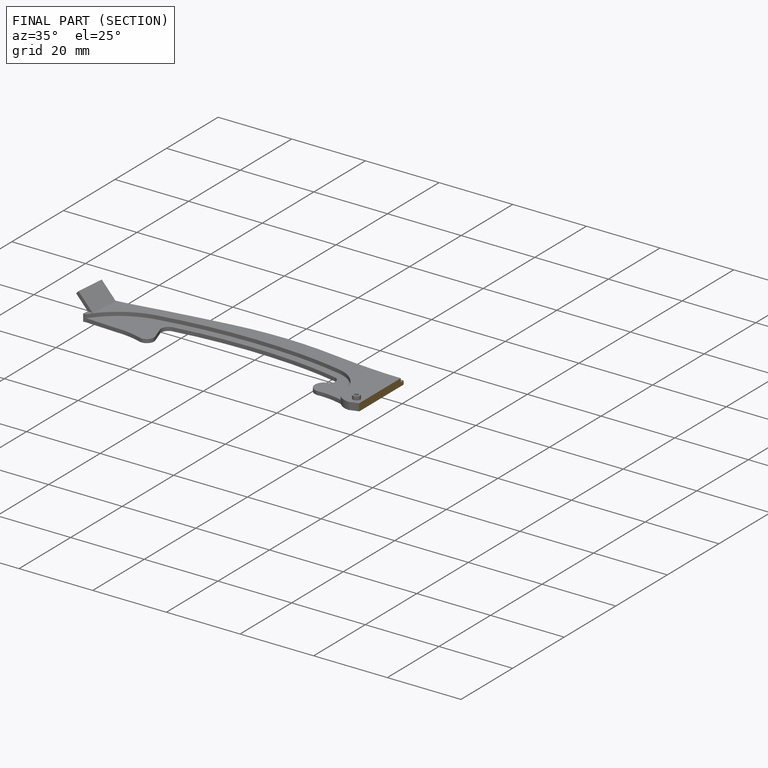
[diagram: finished part — half-section view (interior)]
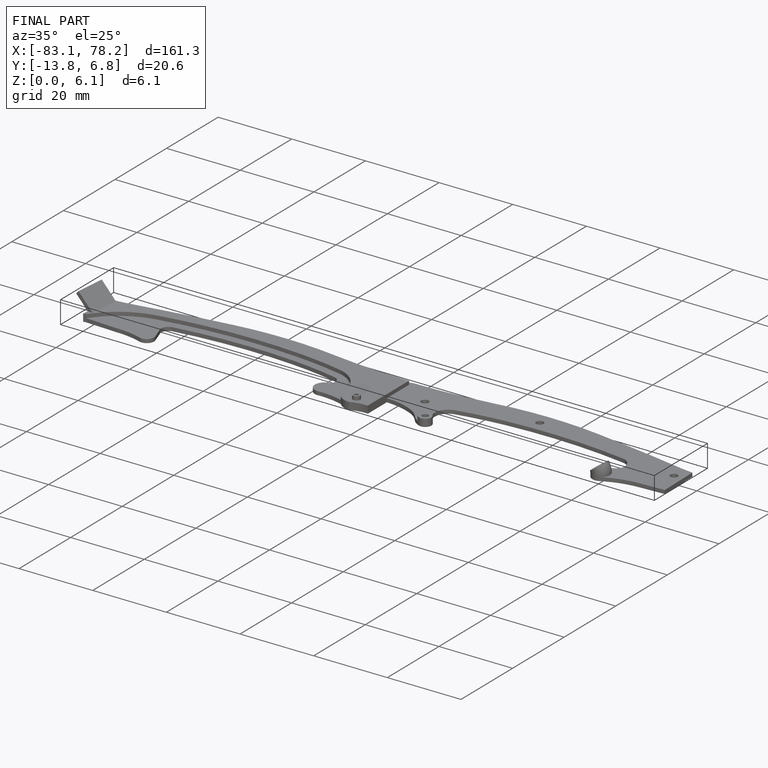
[diagram: finished part — iso view with bounding-box wireframe]
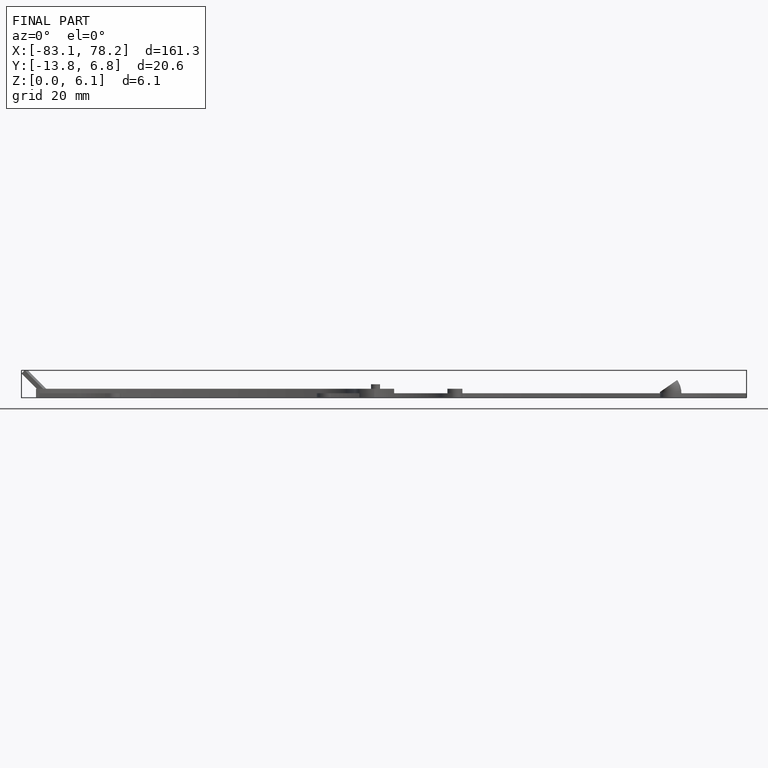
[diagram: finished part — front view with bounding-box wireframe]
